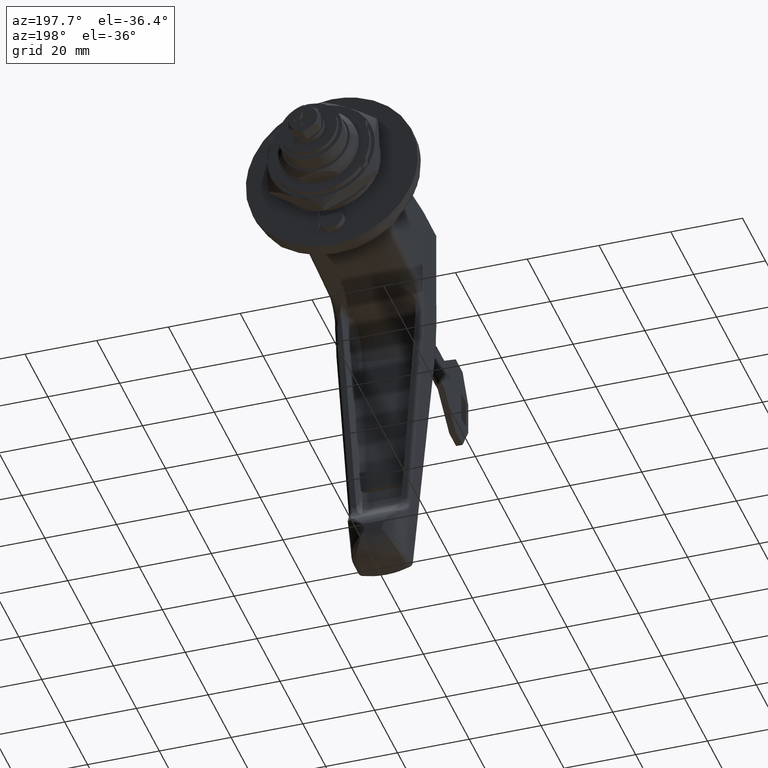
[diagram: clean part render]
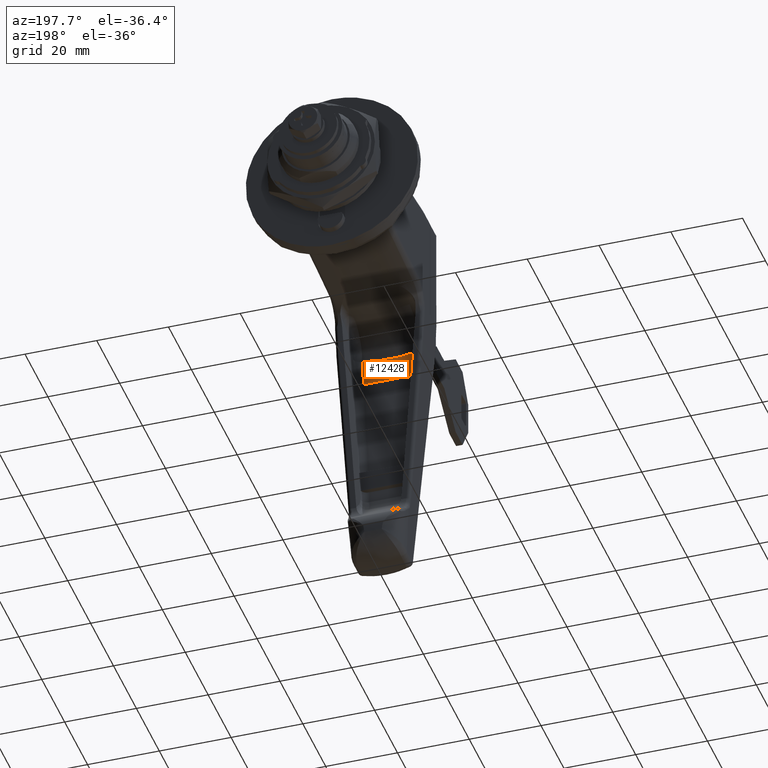
[diagram: same view with one face highlighted and labeled with its STEP entity id]
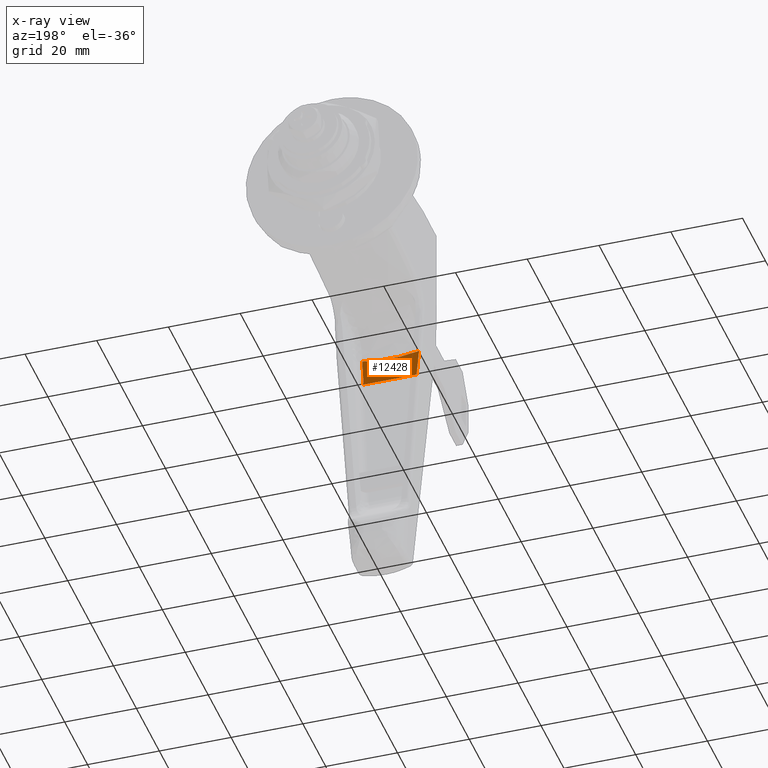
[diagram: x-ray of the same camera — body ghosted, the highlighted face saturated]
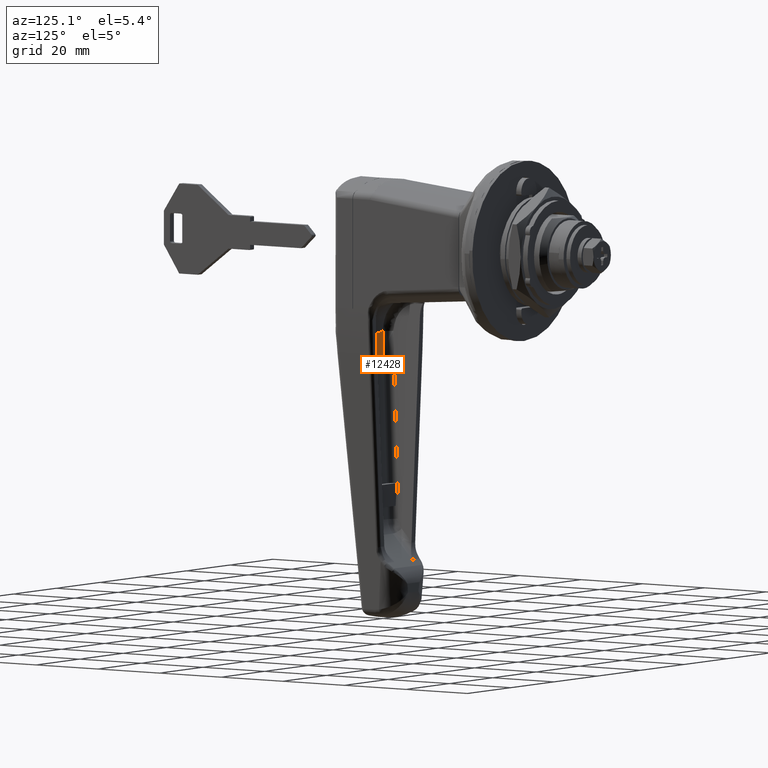
[diagram: same view with one face highlighted and labeled with its STEP entity id]
A machine part, auxiliary view. The second image highlights one B-rep face of the part: STEP entity #12428.
The next image is the same camera in x-ray: the body ghosted, the highlighted face saturated — about 0% of this face is hidden behind the body in this view.
A second angle (auxiliary view) of the same face is appended — the face is thin or edge-on in the first view.
In plain terms, the highlighted face is a freeform B-spline surface patch.
Its self-contained STEP definition (entity closure, byte-faithful):
#11433=CARTESIAN_POINT('',(-50.871255789139212,-7.398278548856220,-32.746703629383902));
#11434=VERTEX_POINT('',#11433);
#11493=CARTESIAN_POINT('',(-51.348844931529896,-7.917446002940620,-24.725503491098149));
#11494=VERTEX_POINT('',#11493);
#11522=CARTESIAN_POINT('',(-50.871255789139212,-7.398278548856220,-32.746703629383902));
#11523=CARTESIAN_POINT('',(-51.191654038498086,-7.657547795550872,-28.740962316445351));
#11524=CARTESIAN_POINT('',(-51.348844931529896,-7.917446002940620,-24.725503491098149));
#11532=(BOUNDED_CURVE()B_SPLINE_CURVE(2,(#11522,#11523,#11524),.UNSPECIFIED.,.F.,.U.)CURVE()GEOMETRIC_REPRESENTATION_ITEM()QUASI_UNIFORM_CURVE()RATIONAL_B_SPLINE_CURVE((1.0,0.999793063852567,1.0))REPRESENTATION_ITEM(''));
#11533=EDGE_CURVE('',#11434,#11494,#11532,.T.);
#11935=CARTESIAN_POINT('',(-50.871255789139212,7.398278548835680,-32.746703629383902));
#11936=VERTEX_POINT('',#11935);
#11978=CARTESIAN_POINT('',(-51.348844931529896,7.917446002939130,-24.725503491098451));
#11979=VERTEX_POINT('',#11978);
#11995=CARTESIAN_POINT('',(-51.348844931529896,7.917446002939130,-24.725503491098451));
#11996=CARTESIAN_POINT('',(-51.191654057933754,7.657547827685778,-28.740961819959626));
#11997=CARTESIAN_POINT('',(-50.871255789139212,7.398278548835680,-32.746703629383902));
#12005=(BOUNDED_CURVE()B_SPLINE_CURVE(2,(#11995,#11996,#11997),.UNSPECIFIED.,.F.,.U.)CURVE()GEOMETRIC_REPRESENTATION_ITEM()QUASI_UNIFORM_CURVE()RATIONAL_B_SPLINE_CURVE((1.0,0.999793063904155,1.0))REPRESENTATION_ITEM(''));
#12006=EDGE_CURVE('',#11979,#11936,#12005,.T.);
#12346=CARTESIAN_POINT('',(-51.348844931529896,-7.917446002940618,-24.725503491098149));
#12347=CARTESIAN_POINT('',(-51.337869253556512,-6.616730629748216,-25.005878404252549));
#12348=CARTESIAN_POINT('',(-51.329066461484068,-5.306585961793548,-25.216413056628220));
#12349=CARTESIAN_POINT('',(-51.317123435190837,-2.667510879736255,-25.498394750750919));
#12350=CARTESIAN_POINT('',(-51.313982445634913,-1.338581595493655,-25.569850141262862));
#12351=CARTESIAN_POINT('',(-51.313982445634913,1.338581595493939,-25.569850141262862));
#12352=CARTESIAN_POINT('',(-51.317123435190823,2.667510879734740,-25.498394750751039));
#12353=CARTESIAN_POINT('',(-51.329066461484061,5.306585961792049,-25.216413056628440));
#12354=CARTESIAN_POINT('',(-51.337869253556491,6.616730629746728,-25.005878404252819));
#12355=CARTESIAN_POINT('',(-51.348844931529882,7.917446002939135,-24.725503491098468));
#12356=B_SPLINE_CURVE_WITH_KNOTS('',3,(#12346,#12347,#12348,#12349,#12350,#12351,#12352,#12353,#12354,#12355),.UNSPECIFIED.,.F.,.U.,(4,2,2,2,4),(0.0,0.250000000000000,0.500000000000000,0.750000000000000,1.0),.UNSPECIFIED.);
#12357=EDGE_CURVE('',#11494,#11979,#12356,.T.);
#12404=CARTESIAN_POINT('',(-50.838853419228570,8.313318303086124,-33.146695779739041));
#12405=CARTESIAN_POINT('',(-50.838853419228570,-8.323215110591288,-33.146695779739041));
#12406=CARTESIAN_POINT('',(-51.200219096136777,8.313318303086124,-28.741410235378190));
#12407=CARTESIAN_POINT('',(-51.200219096136777,-8.323215110591287,-28.741410235378190));
#12408=CARTESIAN_POINT('',(-51.364139658532437,8.313318303086122,-24.324368699573288));
#12409=CARTESIAN_POINT('',(-51.364139658532437,-8.323215110591287,-24.324368699573288));
#12417=(BOUNDED_SURFACE()B_SPLINE_SURFACE(1,2,((#12404,#12406,#12408),(#12405,#12407,#12409)),.UNSPECIFIED.,.F.,.F.,.U.)B_SPLINE_SURFACE_WITH_KNOTS((2,2),(3,3),(0.0,16.636533413677409),(4.772158839821816,13.611685058951380),.UNSPECIFIED.)GEOMETRIC_REPRESENTATION_ITEM()RATIONAL_B_SPLINE_SURFACE(((0.999408271732137,0.998995295285729,0.999082651176717),(0.999408271732137,0.998995295285729,0.999082651176717)))REPRESENTATION_ITEM('')SURFACE());
#12418=ORIENTED_EDGE('',*,*,#12357,.F.);
#12419=ORIENTED_EDGE('',*,*,#11533,.F.);
#12420=CARTESIAN_POINT('',(-50.871255789139212,7.398278548835680,-32.746703629383902));
#12421=CARTESIAN_POINT('',(-50.871255789139212,-7.398278548856220,-32.746703629383902));
#12422=QUASI_UNIFORM_CURVE('',1,(#12420,#12421),.UNSPECIFIED.,.F.,.U.);
#12423=EDGE_CURVE('',#11936,#11434,#12422,.T.);
#12424=ORIENTED_EDGE('',*,*,#12423,.F.);
#12425=ORIENTED_EDGE('',*,*,#12006,.F.);
#12426=EDGE_LOOP('',(#12418,#12419,#12424,#12425));
#12427=FACE_OUTER_BOUND('',#12426,.T.);
#12428=ADVANCED_FACE('',(#12427),#12417,.F.);